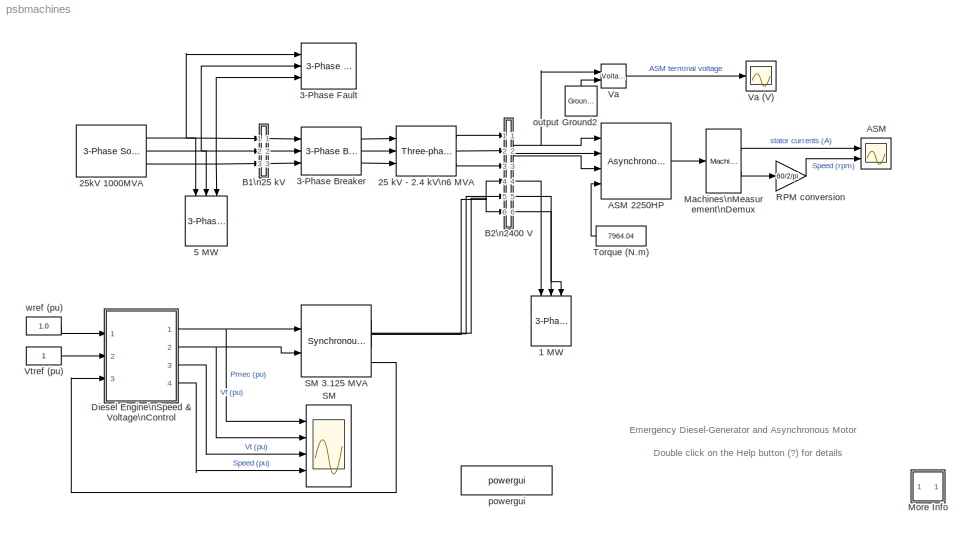
MODEL psbmachines
KIND model
CONFIG InitFcn = powericon('psbinitsys',bdroot);
BLOCK [Reference] 1 MW  REF=powerlib2/Elements/3-Phase\nParallel RLC Load
  P3 = 1e6
  Ports = [3]
  QC3 = 0
  QL3 = 0
  SourceBlock = powerlib2/Elements/3-Phase\nParallel RLC Load
  SourceType = 3-phase parallel RLC load
  Vpp = 2400
  fn = 60
BLOCK [Reference] 25 kV - 2.4 kV\n6 MVA  REF=powerlib2/Elements/Three-phase\nTransformer\n(Two Windings)
  PSBOutputType = 1111
  Ports = [3, 3]
  SourceBlock = powerlib2/Elements/Three-phase\nTransformer\n(Two Windings)
  SourceType = Three-Phase Transformer (Two Windings)
  Tag = PoWeRsYsTeMbLoCk
  hyst = off
  initialslopes = [+1 +1 +1]
  lm = 200
  matfile = 'hysteresis'
  mesure = None
  nominal = [ 6e6 , 60 ]
  params1 = [ 25e3 , 0.0015 , 0.03]
  params2 = [ 2.4e3 , 0.0015 , 0.03 ]
  phi0 = [ 0.8 , -0.8 , 0.7 ]
  rmag = 200
  sat = [ 0,0  ;  0.005,1.2  ;  1.0,1.4 ]
  sif = off
  type1 = Yg
  type2 = Delta (D1)
  ynsat = off
BLOCK [Reference] 25kV 1000MVA  REF=powerlib2/Electrical\nSources/3-Phase Source
  F = 60
  InternalConnection = Yg
  L = 25^2/1000/377
  PSBOutputType = 111
  Phi = 0
  Ports = [0, 3]
  Psc = 1000e6
  R = 25^2/1000/10
  RLoff = on
  SourceBlock = powerlib2/Electrical\nSources/3-Phase Source
  SourceType = 3-Phase Source
  Tag = PoWeRsYsTeMbLoCk
  V = 25e3
  Vbase = 25e3
  XRratio = 10
BLOCK [Reference] 3-Phase Breaker  REF=powerlib2/Elements/3-Phase Breaker
  Cp = inf
  Ports = [3, 3]
  Ron = 0.01
  Rp = 1e5
  SourceBlock = powerlib2/Elements/3-Phase Breaker
  SourceType = Three-Phase Breaker
  Ts = 0
  comext = off
  init_states = closed
  mesure = None
  sa = on
  sb = on
  sc = on
  sw_times = [0.2]
BLOCK [Reference] 3-Phase Fault  REF=powerlib2/Elements/3-Phase Fault
  Cp = inf
  Ports = [3]
  Rdef = 0.01
  Rp = inf
  Rt = 0.001
  SourceBlock = powerlib2/Elements/3-Phase Fault
  SourceType = Three-Phase Fault
  Ts = 0
  comext = off
  init_statext = [1 1 0]
  mesure = None
  sa = on
  sb = on
  sc = on
  st = on
  sw_status = [1 0]
  sw_times = [ 0.1 0.4]
BLOCK [Reference] 5 MW  REF=powerlib2/Elements/3-Phase\nParallel RLC Load
  P3 = 5e6
  Ports = [3]
  QC3 = 0
  QL3 = 0
  SourceBlock = powerlib2/Elements/3-Phase\nParallel RLC Load
  SourceType = 3-phase parallel RLC load
  Vpp = 25e3
  fn = 60
BLOCK [Scope] ASM
  DataFormat = Array
  LimitDataPoints = off
  NumInputPorts = 2
  Ports = [2]
  SaveName = ScopeData1
  TimeRange = 0.2
  YMax = 2500~1730
  YMin = -2500~1640
BLOCK [Reference] ASM 2250HP  REF=powerlib2/Machines/Asynchronous Machine\nSI Units
  LoadFlowParameters = 1492000
  PSBOutputType = 1110
  Ports = [4, 1]
  SourceBlock = powerlib2/Machines/Asynchronous Machine\nSI Units
  SourceType = Asynchronous Machine
  Tag = PoWeRsYsTeMbLoCk
  ctrl = Rotor
  iounits = 1
  rotType = Squirrel-cage
  x1 = [ 2250*746, 2400, 60 ]
  x2 = [ 0.029 0.226/377]
  x3 = [ 0.022 0.226/377]
  x4 = 13.04/377
  x5 = [ 63.87 0  2 ]
  x6 = [1,0,0,0,0,0,0,0]
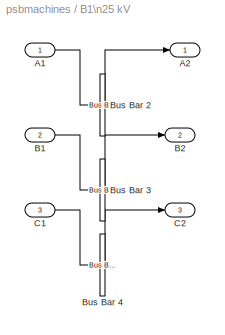
BLOCK [SubSystem] B1\n25 kV
  MaskDisplay = disp('')
  MaskIconFrame = on
  MaskIconOpaque = on
  MaskIconRotate = none
  MaskIconUnits = autoscale
  MinAlgLoopOccurrences = off
  Ports = [3, 3]
  RTWSystemCode = Auto
  TreatAsAtomicUnit = off
BLOCK [Inport] B1\n25 kV/A1
  IconDisplay = Port number
  LatchInput = off
  Port = 1
BLOCK [Outport] B1\n25 kV/A2
  BusOutputAsStruct = off
  IconDisplay = Port number
  InitialOutput = 0
BLOCK [Inport] B1\n25 kV/B1
  IconDisplay = Port number
  LatchInput = off
  Port = 2
BLOCK [Outport] B1\n25 kV/B2
  BusOutputAsStruct = off
  IconDisplay = Port number
  InitialOutput = 0
  Port = 2
BLOCK [Reference] B1\n25 kV/Bus Bar 2  REF=powerlib2/Connectors/Bus Bar (vert)
  PSBOutputType = 11111111111111111111111111111111111111111111111111111111111111111111111111111111111111111
  Ports = [1, 1]
  SourceBlock = powerlib2/Connectors/Bus Bar (vert)
  SourceType = Bus Bar
  Tag = PoWeRsYsTeMbLoCk
  entrees = 1
  sorties = 1
BLOCK [Reference] B1\n25 kV/Bus Bar 3  REF=powerlib2/Connectors/Bus Bar (vert)
  PSBOutputType = 11111111111111111111111111111111111111111111111111111111111111111111111111111111111111111
  Ports = [1, 1]
  SourceBlock = powerlib2/Connectors/Bus Bar (vert)
  SourceType = Bus Bar
  Tag = PoWeRsYsTeMbLoCk
  entrees = 1
  sorties = 1
BLOCK [Reference] B1\n25 kV/Bus Bar 4  REF=powerlib2/Connectors/Bus Bar (vert)
  PSBOutputType = 11111111111111111111111111111111111111111111111111111111111111111111111111111111111111111
  Ports = [1, 1]
  SourceBlock = powerlib2/Connectors/Bus Bar (vert)
  SourceType = Bus Bar
  Tag = PoWeRsYsTeMbLoCk
  entrees = 1
  sorties = 1
BLOCK [Inport] B1\n25 kV/C1
  IconDisplay = Port number
  LatchInput = off
  Port = 3
BLOCK [Outport] B1\n25 kV/C2
  BusOutputAsStruct = off
  IconDisplay = Port number
  InitialOutput = 0
  Port = 3
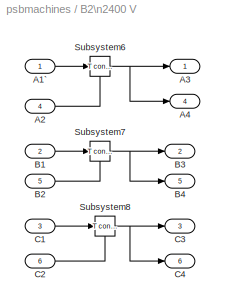
BLOCK [SubSystem] B2\n2400 V
  MaskDisplay = disp('')
  MaskIconFrame = on
  MaskIconOpaque = on
  MaskIconRotate = none
  MaskIconUnits = autoscale
  MinAlgLoopOccurrences = off
  Ports = [6, 6]
  RTWSystemCode = Auto
  TreatAsAtomicUnit = off
BLOCK [Inport] B2\n2400 V/A1`
  IconDisplay = Port number
  LatchInput = off
  Port = 1
BLOCK [Inport] B2\n2400 V/A2
  IconDisplay = Port number
  LatchInput = off
  Port = 4
BLOCK [Outport] B2\n2400 V/A3
  BusOutputAsStruct = off
  IconDisplay = Port number
  InitialOutput = 0
BLOCK [Outport] B2\n2400 V/A4
  BusOutputAsStruct = off
  IconDisplay = Port number
  InitialOutput = 0
  Port = 4
BLOCK [Inport] B2\n2400 V/B1
  IconDisplay = Port number
  LatchInput = off
  Port = 2
BLOCK [Inport] B2\n2400 V/B2
  IconDisplay = Port number
  LatchInput = off
  Port = 5
BLOCK [Outport] B2\n2400 V/B3
  BusOutputAsStruct = off
  IconDisplay = Port number
  InitialOutput = 0
  Port = 2
BLOCK [Outport] B2\n2400 V/B4
  BusOutputAsStruct = off
  IconDisplay = Port number
  InitialOutput = 0
  Port = 5
BLOCK [Inport] B2\n2400 V/C1
  IconDisplay = Port number
  LatchInput = off
  Port = 3
BLOCK [Inport] B2\n2400 V/C2
  IconDisplay = Port number
  LatchInput = off
  Port = 6
BLOCK [Outport] B2\n2400 V/C3
  BusOutputAsStruct = off
  IconDisplay = Port number
  InitialOutput = 0
  Port = 3
BLOCK [Outport] B2\n2400 V/C4
  BusOutputAsStruct = off
  IconDisplay = Port number
  InitialOutput = 0
  Port = 6
BLOCK [Reference] B2\n2400 V/Subsystem6  REF=powerlib2/Connectors/T connector
  PSBOutputType = 1
  Ports = [1, 1, 1]
  SourceBlock = powerlib2/Connectors/T connector
  SourceType = Bus Bar
  Tag = PoWeRsYsTeMbLoCk
BLOCK [Reference] B2\n2400 V/Subsystem7  REF=powerlib2/Connectors/T connector
  PSBOutputType = 1
  Ports = [1, 1, 1]
  SourceBlock = powerlib2/Connectors/T connector
  SourceType = Bus Bar
  Tag = PoWeRsYsTeMbLoCk
BLOCK [Reference] B2\n2400 V/Subsystem8  REF=powerlib2/Connectors/T connector
  PSBOutputType = 1
  Ports = [1, 1, 1]
  SourceBlock = powerlib2/Connectors/T connector
  SourceType = Bus Bar
  Tag = PoWeRsYsTeMbLoCk
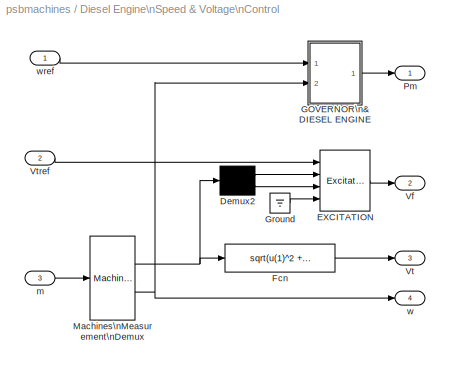
BLOCK [SubSystem] Diesel Engine\nSpeed & Voltage\nControl
  MinAlgLoopOccurrences = off
  Ports = [3, 4]
  RTWSystemCode = Auto
  TreatAsAtomicUnit = off
BLOCK [Demux] Diesel Engine\nSpeed & Voltage\nControl/Demux2
  Outputs = 2
  Ports = [1, 2]
BLOCK [Reference] Diesel Engine\nSpeed & Voltage\nControl/EXCITATION  REF=powerlib2/Machines/Excitation\nSystem
  Ports = [4, 1]
  SourceBlock = powerlib2/Machines/Excitation\nSystem
  SourceType = Excitation System
  damp = [ 0.001, 0.1 ]
  exc = [ 1, 0 ]
  lim = [ 0, 6, 0 ]
  reg = [ 200, 0.02 ]
  sat = [ 0, 0 ]
  tgr = [ 0, 0 ]
  tr = 20e-3
  v0 = [1,1.42734]
BLOCK [Fcn] Diesel Engine\nSpeed & Voltage\nControl/Fcn
  Expr = sqrt(u(1)^2 + u(2)^2)
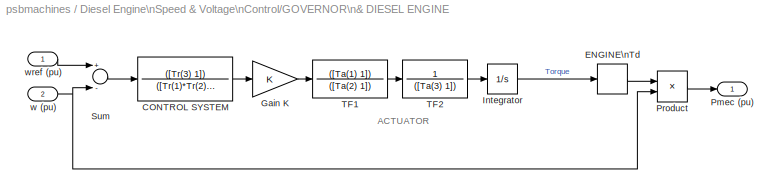
BLOCK [SubSystem] Diesel Engine\nSpeed & Voltage\nControl/GOVERNOR\n& DIESEL ENGINE
  MaskCallbackString = |||||
  MaskDescription = This block implements a diesel engine and governor system:\n1st and 2nd inputs: Desired and actual speed (pu)\nOutput: Diesel engine mechanical power.Motor inertia should be combined with generator.\nController transfer function:\n     Hc=K.(1+T3.s)/(1+T1.s+T1.T2.s^2)\nActuator transfer function : \n     Ha= (1+T4.s) / [ (s (1+T5.s)(1+T6.s) ]\nMotor :\n     Time delay Td\n\n(See reference in Tutor...<+14ch>
  MaskEnableString = on,on,on,on,on,on
  MaskIconFrame = on
  MaskIconOpaque = on
  MaskIconRotate = none
  MaskIconUnits = autoscale
  MaskPromptString = Regulator gain K: |Regulator time constants [T1 T2 T3 ] (s) :|Actuator time constants [T4 T5 T6] (s) :|Torque limits [Tmin Tmax] (pu) :|Engine time delay Td (s) :|Initial value of mechanical power  Pm0 (pu) :
  MaskStyleString = edit,edit,edit,edit,edit,edit
  MaskTabNameString = ,,,,,
  MaskToolTipString = on,on,on,on,on,on
  MaskTunableValueString = on,on,on,on,on,on
  MaskType = Diesel Engine & Governor
  MaskValueString = 40|[0.01 0.02 0.2]|[0.25 0.009 0.0384]|[0 1.1]|0.024|0.000270147
  MaskVarAliasString = ,,,,,
  MaskVariables = K=@1;Tr=@2;Ta=@3;Tlim=@4;Td=@5;Pm0=@6;
  MaskVisibilityString = on,on,on,on,on,on
  MinAlgLoopOccurrences = off
  Ports = [2, 1]
  RTWSystemCode = Auto
  TreatAsAtomicUnit = off
BLOCK [TransferFcn] Diesel Engine\nSpeed & Voltage\nControl/GOVERNOR\n& DIESEL ENGINE/CONTROL SYSTEM
  Denominator = ([Tr(1)*Tr(2)  Tr(1) 1])
  Numerator = ([Tr(3) 1])
BLOCK [TransportDelay] Diesel Engine\nSpeed & Voltage\nControl/GOVERNOR\n& DIESEL ENGINE/ENGINE\nTd
  DelayTime = Td
  InitialInput = Pm0
BLOCK [Gain] Diesel Engine\nSpeed & Voltage\nControl/GOVERNOR\n& DIESEL ENGINE/Gain K
  Gain = K
BLOCK [Integrator] Diesel Engine\nSpeed & Voltage\nControl/GOVERNOR\n& DIESEL ENGINE/Integrator
  InitialCondition = Pm0
  LimitOutput = on
  LowerSaturationLimit = Tlim(1)
  Ports = [1, 1]
  UpperSaturationLimit = Tlim(2)
BLOCK [Outport] Diesel Engine\nSpeed & Voltage\nControl/GOVERNOR\n& DIESEL ENGINE/Pmec (pu)
  BusOutputAsStruct = off
  IconDisplay = Port number
  InitialOutput = 0
BLOCK [Product] Diesel Engine\nSpeed & Voltage\nControl/GOVERNOR\n& DIESEL ENGINE/Product
  Ports = [2, 1]
  RndMeth = Floor
BLOCK [Sum] Diesel Engine\nSpeed & Voltage\nControl/GOVERNOR\n& DIESEL ENGINE/Sum
  Inputs = +-
  Ports = [2, 1]
BLOCK [TransferFcn] Diesel Engine\nSpeed & Voltage\nControl/GOVERNOR\n& DIESEL ENGINE/TF1
  Denominator = ([Ta(2) 1])
  Numerator = ([Ta(1) 1])
BLOCK [TransferFcn] Diesel Engine\nSpeed & Voltage\nControl/GOVERNOR\n& DIESEL ENGINE/TF2
  Denominator = ([Ta(3) 1])
  Numerator = 1
BLOCK [Inport] Diesel Engine\nSpeed & Voltage\nControl/GOVERNOR\n& DIESEL ENGINE/w (pu)
  IconDisplay = Port number
  LatchInput = off
  Port = 2
BLOCK [Inport] Diesel Engine\nSpeed & Voltage\nControl/GOVERNOR\n& DIESEL ENGINE/wref (pu)
  IconDisplay = Port number
  LatchInput = off
  Port = 1
BLOCK [Ground] Diesel Engine\nSpeed & Voltage\nControl/Ground
BLOCK [Reference] Diesel Engine\nSpeed & Voltage\nControl/Machines\nMeasurement\nDemux  REF=powerlib2/Machines/Machines\nMeasurement\nDemux
  Ports = [1, 2]
  SourceBlock = powerlib2/Machines/Machines\nMeasurement\nDemux
  SourceType = Machine measurements
  asm1 = off
  asm10 = off
  asm11 = off
  asm2 = off
  asm3 = off
  asm4 = off
  asm5 = on
  asm6 = off
  asm7 = off
  asm8 = off
  asm9 = on
  lastType = 1
  machType = Synchronous
  pmsm1 = on
  pmsm2 = on
  pmsm3 = on
  pmsm4 = on
  pmsm5 = on
  pmsm6 = on
  sm1 = off
  sm10 = off
  sm11 = off
  sm115 = off
  sm12 = off
  sm13 = off
  sm14 = off
  sm2 = off
  sm3 = off
  sm4 = off
  sm5 = off
  sm6 = on
  sm7 = off
  sm8 = on
  sm9 = off
  ssm1 = on
  ssm2 = on
  ssm3 = on
  ssm4 = on
  ssm5 = on
  ssm6 = on
BLOCK [Outport] Diesel Engine\nSpeed & Voltage\nControl/Pm
  BusOutputAsStruct = off
  IconDisplay = Port number
  InitialOutput = 0
BLOCK [Outport] Diesel Engine\nSpeed & Voltage\nControl/Vf
  BusOutputAsStruct = off
  IconDisplay = Port number
  InitialOutput = 0
  Port = 2
BLOCK [Outport] Diesel Engine\nSpeed & Voltage\nControl/Vt
  BusOutputAsStruct = off
  IconDisplay = Port number
  InitialOutput = 0
  Port = 3
BLOCK [Inport] Diesel Engine\nSpeed & Voltage\nControl/Vtref
  IconDisplay = Port number
  LatchInput = off
  Port = 2
BLOCK [Inport] Diesel Engine\nSpeed & Voltage\nControl/m
  IconDisplay = Port number
  LatchInput = off
  Port = 3
BLOCK [Outport] Diesel Engine\nSpeed & Voltage\nControl/w
  BusOutputAsStruct = off
  IconDisplay = Port number
  InitialOutput = 0
  Port = 4
BLOCK [Inport] Diesel Engine\nSpeed & Voltage\nControl/wref
  IconDisplay = Port number
  LatchInput = off
  Port = 1
BLOCK [Reference] Machines\nMeasurement\nDemux  REF=powerlib2/Machines/Machines\nMeasurement\nDemux
  Ports = [1, 2]
  SourceBlock = powerlib2/Machines/Machines\nMeasurement\nDemux
  SourceType = Machine measurements
  asm1 = off
  asm10 = off
  asm11 = off
  asm2 = off
  asm3 = off
  asm4 = off
  asm5 = on
  asm6 = off
  asm7 = off
  asm8 = off
  asm9 = on
  lastType = 1
  machType = Asynchronous
  pmsm1 = on
  pmsm2 = on
  pmsm3 = on
  pmsm4 = on
  pmsm5 = on
  pmsm6 = on
  sm1 = on
  sm10 = on
  sm11 = on
  sm115 = off
  sm12 = off
  sm13 = off
  sm14 = off
  sm2 = on
  sm3 = on
  sm4 = on
  sm5 = on
  sm6 = on
  sm7 = on
  sm8 = on
  sm9 = on
  ssm1 = on
  ssm2 = on
  ssm3 = on
  ssm4 = on
  ssm5 = on
  ssm6 = on
BLOCK [SubSystem] More Info
  MaskDisplay = disp('?')
  MaskIconFrame = on
  MaskIconOpaque = on
  MaskIconRotate = none
  MaskIconUnits = autoscale
  MinAlgLoopOccurrences = off
  Ports = []
  RTWSystemCode = Auto
  TreatAsAtomicUnit = off
BLOCK [Gain] RPM conversion
  Gain = 60/2/pi
BLOCK [Scope] SM
  DataFormat = Structure
  Decimation = 10
  LimitDataPoints = off
  NumInputPorts = 4
  Ports = [4]
  SaveName = Pmec_SM
  SaveToWorkspace = on
  TimeRange = 0.8
  YMax = 1.5~6~1.5~1.2
  YMin = 0~0~0~0.8
  ZoomMode = yonly
BLOCK [Reference] SM 3.125 MVA  REF=powerlib2/Machines/Synchronous Machine\npu Standard
  LoadFlowParameters = [1 0 0 0]
  PSBOutputType = 1110
  Ports = [2, 4]
  SourceBlock = powerlib2/Machines/Synchronous Machine\npu Standard
  SourceType = Synchronous Machine
  Tag = PoWeRsYsTeMbLoCk
  dAxisT = Short-circuit
  iounits = 0.5
  qAxisT = Open-circuit
  rotorType = Salient-pole
  x1 = [ 3.125e6  2400  60 ]
  x2 = [ 1.56, 0.296, 0.177, 1.06, 0.177, 0.052 ]
  x2b = [ 31 32 33 34 35 36 37 ]
  x3 = [ 3.7, 0.05, 0.05 ]
  x3a = []
  x3b = []
  x3c = []
  x3d = []
  x3e = []
  x3f = []
  x3g = []
  x4 = 0.0036
  x5 = [ 1.07  0  2 ]
  x6 = [0 0 0 0 0 0 0 0 1]
  x7 = off
  x8 = [0.211 0.418 1.0 1.72 3.35 ; 0.25 0.50 1.0 1.2 1.4]
BLOCK [Constant] Torque (N.m)
  Value = 7964.04
BLOCK [Reference] Va  REF=powerlib2/Measurements/Voltage Measurement
  OutputType = Magnitude
  PSBOutputType = 0
  PSBequivalent = 1
  PhasorSimulation = off
  Ports = [2, 1]
  SourceBlock = powerlib2/Measurements/Voltage Measurement
  SourceType = Voltage Measurement
  Tag = PoWeRsYsTeMmEaSuReMeNt
BLOCK [Scope] Va (V)
  DataFormat = Array
  LimitDataPoints = off
  NumInputPorts = 1
  Ports = [1]
  TickLabels = on
  TimeRange = 0.2
  YMax = 2000
  YMin = -2000
  ZoomMode = xonly
BLOCK [Constant] Vtref (pu)
BLOCK [Reference] output Ground2  REF=powerlib2/Connectors/Ground (output)
  PSBOutputType = 1
  Ports = [0, 1]
  SourceBlock = powerlib2/Connectors/Ground (output)
  SourceType = Ground
  Tag = PoWeRsYsTeMbLoCk
BLOCK [Reference] powergui  REF=powerlib2/powergui
  DisplayStyle = off
  Frange = logspace(0,3,50)
  FreqAxis = off
  MaxFrequency = 1000
  Ports = []
  RmsSteady = 1
  SourceBlock = powerlib2/powergui
  SourceType = PSB option menu block
  StartTime = 0.0
  Ts = 0
  Xlog = off
  Ylog = off
  ZoomFFT = on
  cycles = 2
  display = off
  echomessages = off
  frequency = 60
  frequencyindice = 60
  frequencyindicesteady = 1
  fundamental = 60
  methode = off
  save = off
  variable = ZData
BLOCK [Constant] wref (pu)
  Value = 1.0
ANNOTATION (root): Emergency Diesel-Generator and Asynchronous Motor
ANNOTATION (root): Double click on the Help button (?) for details
ANNOTATION Diesel Engine\nSpeed & Voltage\nControl/GOVERNOR\n& DIESEL ENGINE: ACTUATOR
ANNOTATION More Info: 1
ANNOTATION More Info: 2
ANNOTATION More Info: 3
ANNOTATION More Info: 4
ANNOTATION More Info: A plant consisting of a resistive and motor load (ASM) is fed at 2400 V from a distibution 25 kV network through a 6 MVA 25/2 kV Wye-Delta transformer and from an\nemergency synchronous generator/ diesel engine unit (SM). The 25 kV network is modelled by a simple R-L equivalent source (short-circuit level 1000 MVA) and a 5 MW load.\nThe asynchronous motor is rated 2250 HP, 2.4 kV and the synchrono...<+747ch>
ANNOTATION More Info: Circuit Description
ANNOTATION More Info: Demonstration
ANNOTATION More Info: G. Sybille (Hydro-Quebec)
ANNOTATION More Info: In order to start the simulation in steady-state you must initialize the synchronous machine and the asynchronous motor for the desired load flow.\nOpen the Powergui and select \"Load Flow & Machine initialization\" . The machine \"Bus type\" should be already initialized as \"PV generator\",\nindicating that the load flow will be performed with the machine controlling its active power and termina...<+76ch>
ANNOTATION More Info: Load Flow : U AB (Vrms) = 2400 P (wattts) = 0. Specify also the ASM mechanical power by entering Pmec (Watts) = 2000*746.
ANNOTATION More Info: Open the SM and ASM scopes displaying the synchronous machine and asynchronous machine signals. Start the simulation.\nObserve that during the fault the terminal voltage drops to about 0.2 pu and the excitation voltage hits the limit of 6 pu. After fault clearing and islanding\nthe SM mechanical power increases from its initial value of 0 pu to the final value of 0.80 pu required by the resistive ...<+402ch>
ANNOTATION More Info: Start Simulation. If the SM and ASM initial conditions are not properly set you will observe that the voltage and currents Machine do not start in steady state.\nStop the simulation.
ANNOTATION More Info: The diesel engine governor and SM excitation system contain integrators and transfer functions which have also been initialized by the load flow.\nOpen the GOVERNOR block in the Diesel Engine subsystem. Note that the initial mechanical power has been automatically set to 0.00027 pu (844 W).\nNow open the EXCITATION block. Notice in the last line of the block menu that the initial terminal voltage ...<+206ch>
ANNOTATION More Info: Then press the \"Execute Load Flow\" button.\n\nOnce the load flow is solved the three line-to-line machine voltages and the three machine currents are updated.\nThe SM reactive power, mechanical power and field voltage are displayed : Q = 856 kvar; Pmec = 844 W (power required by resistive losses in stator winding ) ;\n field voltage Ef = 1.4273 pu; The active and reactive powers absorbed by the ...<+42ch>
ANNOTATION More Info: This demonstration illustrates fault and islanding of an induction motor/diesel-generator system\nand demonstrates the Machine Load Flow option of the Powergui. (See Tutorial Session 7)
LINE 25 kV - 2.4 kV\n6 MVA:1 -> B2\n2400 V:1
LINE 25 kV - 2.4 kV\n6 MVA:2 -> B2\n2400 V:2
LINE 25 kV - 2.4 kV\n6 MVA:3 -> B2\n2400 V:3
NET 25kV 1000MVA:1 -> 3-Phase Fault:1, 5 MW:1, B1\n25 kV:1
NET 25kV 1000MVA:2 -> 3-Phase Fault:2, 5 MW:2, B1\n25 kV:2
NET 25kV 1000MVA:3 -> 3-Phase Fault:3, 5 MW:3, B1\n25 kV:3
LINE 3-Phase Breaker:1 -> 25 kV - 2.4 kV\n6 MVA:1
LINE 3-Phase Breaker:2 -> 25 kV - 2.4 kV\n6 MVA:2
LINE 3-Phase Breaker:3 -> 25 kV - 2.4 kV\n6 MVA:3
LINE ASM 2250HP:1 -> Machines\nMeasurement\nDemux:1
LINE B1\n25 kV/A1:1 -> B1\n25 kV/Bus Bar 2:1
LINE B1\n25 kV/B1:1 -> B1\n25 kV/Bus Bar 3:1
LINE B1\n25 kV/Bus Bar 2:1 -> B1\n25 kV/A2:1
LINE B1\n25 kV/Bus Bar 3:1 -> B1\n25 kV/B2:1
LINE B1\n25 kV/Bus Bar 4:1 -> B1\n25 kV/C2:1
LINE B1\n25 kV/C1:1 -> B1\n25 kV/Bus Bar 4:1
LINE B1\n25 kV:1 -> 3-Phase Breaker:1
LINE B1\n25 kV:2 -> 3-Phase Breaker:2
LINE B1\n25 kV:3 -> 3-Phase Breaker:3
LINE B2\n2400 V/A1`:1 -> B2\n2400 V/Subsystem6:1
LINE B2\n2400 V/A2:1 -> B2\n2400 V/Subsystem6:enable
LINE B2\n2400 V/B1:1 -> B2\n2400 V/Subsystem7:1
LINE B2\n2400 V/B2:1 -> B2\n2400 V/Subsystem7:enable
LINE B2\n2400 V/C1:1 -> B2\n2400 V/Subsystem8:1
LINE B2\n2400 V/C2:1 -> B2\n2400 V/Subsystem8:enable
NET B2\n2400 V/Subsystem6:1 -> B2\n2400 V/A3:1, B2\n2400 V/A4:1
NET B2\n2400 V/Subsystem7:1 -> B2\n2400 V/B3:1, B2\n2400 V/B4:1
NET B2\n2400 V/Subsystem8:1 -> B2\n2400 V/C3:1, B2\n2400 V/C4:1
NET B2\n2400 V:1 -> ASM 2250HP:1, Va:1
LINE B2\n2400 V:2 -> ASM 2250HP:2
LINE B2\n2400 V:3 -> ASM 2250HP:3
LINE B2\n2400 V:4 -> 1 MW:1
LINE B2\n2400 V:5 -> 1 MW:2
LINE B2\n2400 V:6 -> 1 MW:3
LINE Diesel Engine\nSpeed & Voltage\nControl/Demux2:1 -> Diesel Engine\nSpeed & Voltage\nControl/EXCITATION:2
LINE Diesel Engine\nSpeed & Voltage\nControl/Demux2:2 -> Diesel Engine\nSpeed & Voltage\nControl/EXCITATION:3
LINE Diesel Engine\nSpeed & Voltage\nControl/EXCITATION:1 -> Diesel Engine\nSpeed & Voltage\nControl/Vf:1
LINE Diesel Engine\nSpeed & Voltage\nControl/Fcn:1 -> Diesel Engine\nSpeed & Voltage\nControl/Vt:1
LINE Diesel Engine\nSpeed & Voltage\nControl/GOVERNOR\n& DIESEL ENGINE/CONTROL SYSTEM:1 -> Diesel Engine\nSpeed & Voltage\nControl/GOVERNOR\n& DIESEL ENGINE/Gain K:1
LINE Diesel Engine\nSpeed & Voltage\nControl/GOVERNOR\n& DIESEL ENGINE/ENGINE\nTd:1 -> Diesel Engine\nSpeed & Voltage\nControl/GOVERNOR\n& DIESEL ENGINE/Product:1
LINE Diesel Engine\nSpeed & Voltage\nControl/GOVERNOR\n& DIESEL ENGINE/Gain K:1 -> Diesel Engine\nSpeed & Voltage\nControl/GOVERNOR\n& DIESEL ENGINE/TF1:1
LINE Diesel Engine\nSpeed & Voltage\nControl/GOVERNOR\n& DIESEL ENGINE/Integrator:1 -> Diesel Engine\nSpeed & Voltage\nControl/GOVERNOR\n& DIESEL ENGINE/ENGINE\nTd:1
LINE Diesel Engine\nSpeed & Voltage\nControl/GOVERNOR\n& DIESEL ENGINE/Product:1 -> Diesel Engine\nSpeed & Voltage\nControl/GOVERNOR\n& DIESEL ENGINE/Pmec (pu):1
LINE Diesel Engine\nSpeed & Voltage\nControl/GOVERNOR\n& DIESEL ENGINE/Sum:1 -> Diesel Engine\nSpeed & Voltage\nControl/GOVERNOR\n& DIESEL ENGINE/CONTROL SYSTEM:1
LINE Diesel Engine\nSpeed & Voltage\nControl/GOVERNOR\n& DIESEL ENGINE/TF1:1 -> Diesel Engine\nSpeed & Voltage\nControl/GOVERNOR\n& DIESEL ENGINE/TF2:1
LINE Diesel Engine\nSpeed & Voltage\nControl/GOVERNOR\n& DIESEL ENGINE/TF2:1 -> Diesel Engine\nSpeed & Voltage\nControl/GOVERNOR\n& DIESEL ENGINE/Integrator:1
NET Diesel Engine\nSpeed & Voltage\nControl/GOVERNOR\n& DIESEL ENGINE/w (pu):1 -> Diesel Engine\nSpeed & Voltage\nControl/GOVERNOR\n& DIESEL ENGINE/Product:2, Diesel Engine\nSpeed & Voltage\nControl/GOVERNOR\n& DIESEL ENGINE/Sum:2
LINE Diesel Engine\nSpeed & Voltage\nControl/GOVERNOR\n& DIESEL ENGINE/wref (pu):1 -> Diesel Engine\nSpeed & Voltage\nControl/GOVERNOR\n& DIESEL ENGINE/Sum:1
LINE Diesel Engine\nSpeed & Voltage\nControl/GOVERNOR\n& DIESEL ENGINE:1 -> Diesel Engine\nSpeed & Voltage\nControl/Pm:1
LINE Diesel Engine\nSpeed & Voltage\nControl/Ground:1 -> Diesel Engine\nSpeed & Voltage\nControl/EXCITATION:4
NET Diesel Engine\nSpeed & Voltage\nControl/Machines\nMeasurement\nDemux:1 -> Diesel Engine\nSpeed & Voltage\nControl/Demux2:1, Diesel Engine\nSpeed & Voltage\nControl/Fcn:1
NET Diesel Engine\nSpeed & Voltage\nControl/Machines\nMeasurement\nDemux:2 -> Diesel Engine\nSpeed & Voltage\nControl/GOVERNOR\n& DIESEL ENGINE:2, Diesel Engine\nSpeed & Voltage\nControl/w:1
LINE Diesel Engine\nSpeed & Voltage\nControl/Vtref:1 -> Diesel Engine\nSpeed & Voltage\nControl/EXCITATION:1
LINE Diesel Engine\nSpeed & Voltage\nControl/m:1 -> Diesel Engine\nSpeed & Voltage\nControl/Machines\nMeasurement\nDemux:1
LINE Diesel Engine\nSpeed & Voltage\nControl/wref:1 -> Diesel Engine\nSpeed & Voltage\nControl/GOVERNOR\n& DIESEL ENGINE:1
NET Diesel Engine\nSpeed & Voltage\nControl:1 -> SM 3.125 MVA:1, SM:1
NET Diesel Engine\nSpeed & Voltage\nControl:2 -> SM 3.125 MVA:2, SM:2
LINE Diesel Engine\nSpeed & Voltage\nControl:3 -> SM:3
LINE Diesel Engine\nSpeed & Voltage\nControl:4 -> SM:4
LINE Machines\nMeasurement\nDemux:1 -> ASM:1
LINE Machines\nMeasurement\nDemux:2 -> RPM conversion:1
LINE RPM conversion:1 -> ASM:2
LINE SM 3.125 MVA:1 -> B2\n2400 V:4
LINE SM 3.125 MVA:2 -> B2\n2400 V:5
LINE SM 3.125 MVA:3 -> B2\n2400 V:6
LINE SM 3.125 MVA:4 -> Diesel Engine\nSpeed & Voltage\nControl:3
LINE Torque (N.m):1 -> ASM 2250HP:4
LINE Va:1 -> Va (V):1
LINE Vtref (pu):1 -> Diesel Engine\nSpeed & Voltage\nControl:2
LINE output Ground2:1 -> Va:2
LINE wref (pu):1 -> Diesel Engine\nSpeed & Voltage\nControl:1
note: NET lines group one-source signal fan-out (src -> all destinations, sorted); 1:1 wires keep LINE
